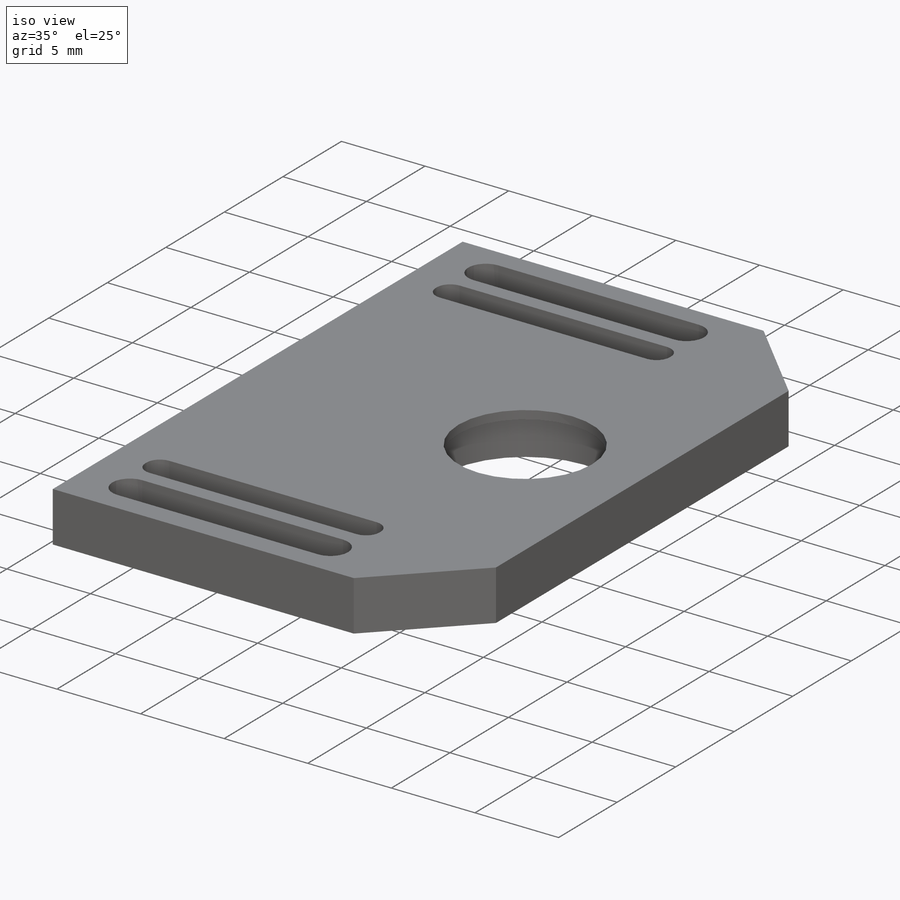
[diagram: iso view]
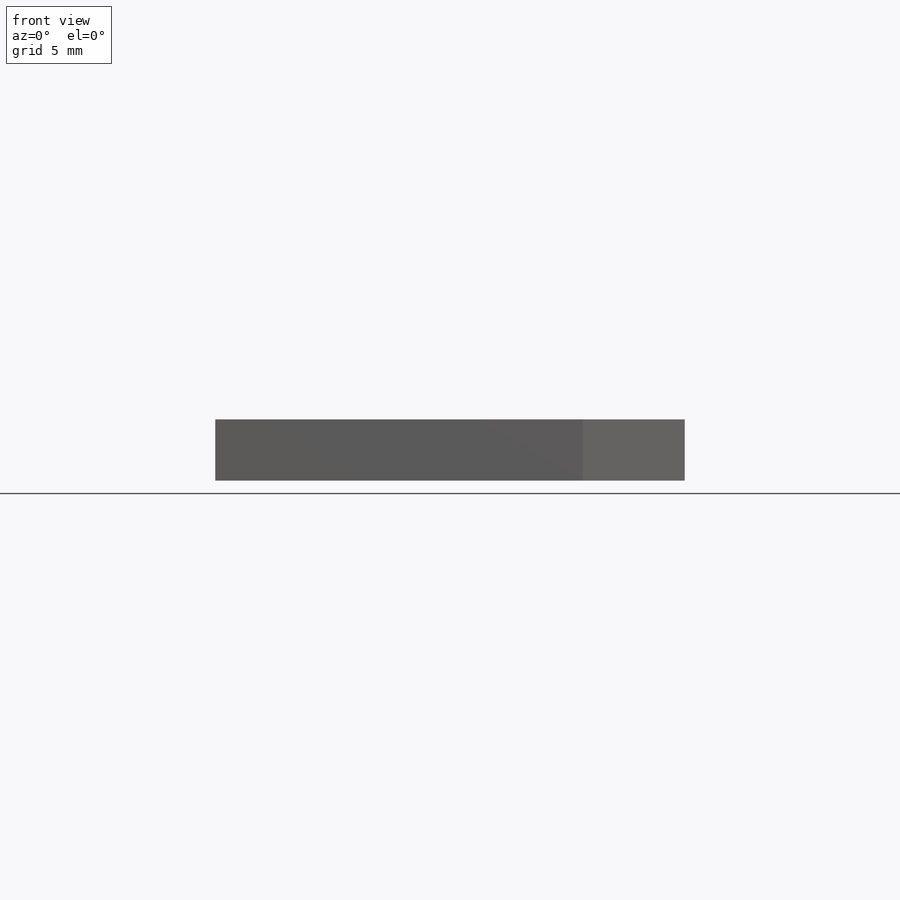
[diagram: front view]
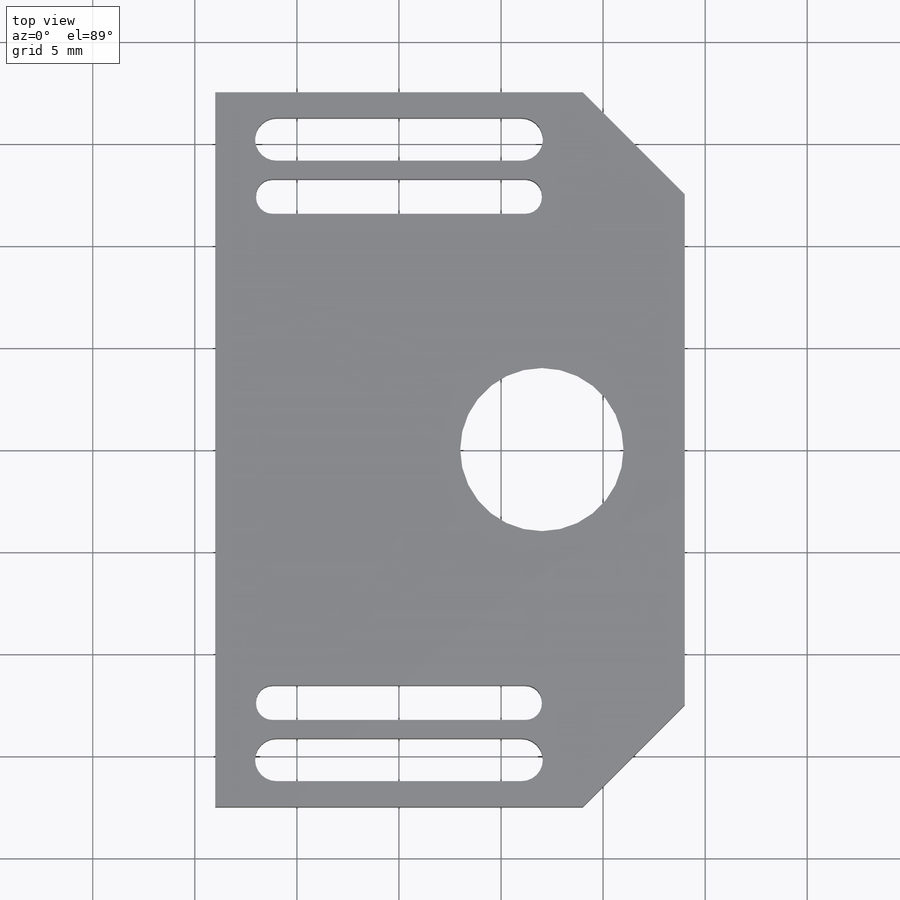
[diagram: top view]
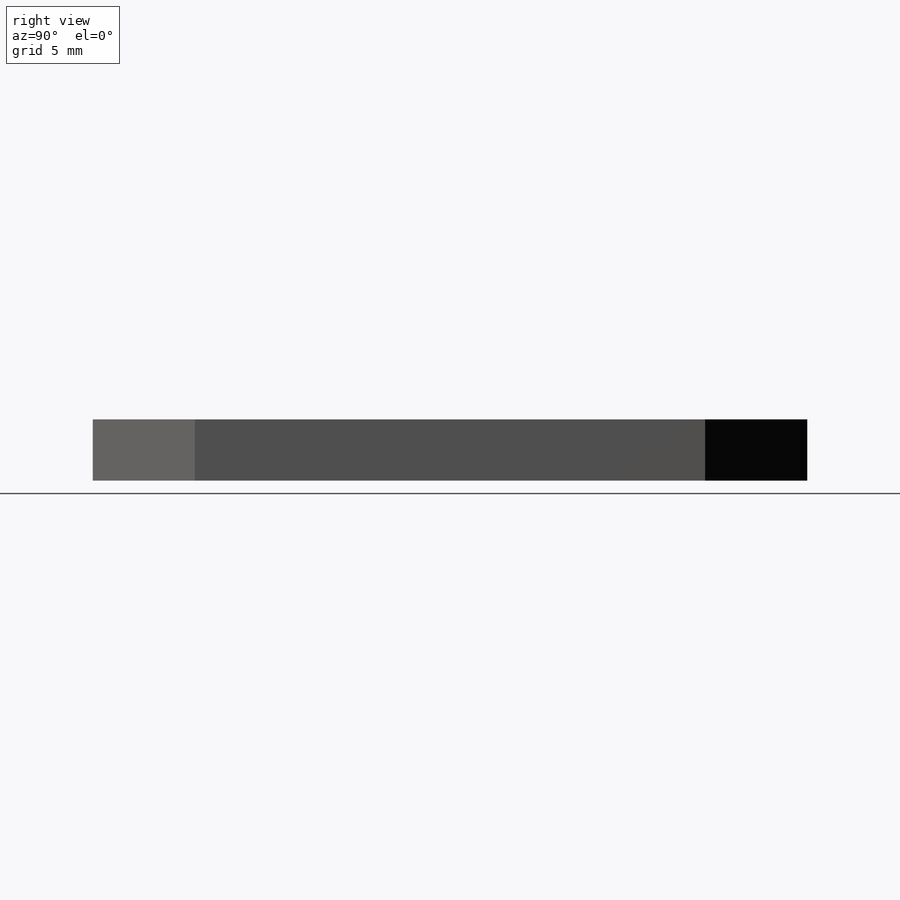
[diagram: right view]
SOLIDWORKS PART (.sldprt)
format: sldprt  version: not decoded by parser v0  size: 441,344 bytes
history: native  units: mm
features: sketch x4, plane x3, cut_extrude x2, material x1, extrude x1, fillet x1, cut_revolve x1 (+9 scaffold rows collapsed)
feature tree (22):
  scaffold x9  (default folders/planes/origin — collapsed)
  material  "Unlegierter Baustahl"
  plane  "Ebene vorne"
  plane  "Ebene oben"
  plane  "Ebene rechts"
  sketch  "Skizze1"  dims[c1.D5=10.0mm c1.D6=2.5mm c1.D7=2.5mm c1.D8=1.25mm c1.D9=16.0mm c1.D11=5.0mm c2.D7=1.05mm c2.D1=59.0mm c2.D2=41.0mm c2.D3=5.1mm c2.D4=12.0mm c2.D5=45.0mm c2.D6=3.4mm c3.D1=1.7mm c3.D2=10.0mm c3.D3=41.0mm c4.D1=1.7mm c4.D4=30.0mm c4.D6=8.0mm c4.D10=~15.394604mm c5.D10=30.0deg c5.D1=19.5mm c5.D2=17.0mm c5.D3=17.5mm c5.D4=3.4mm c5.D5=12.0mm c5.D6=4.25mm c6.D1=19.5mm c6.D2=4.25mm c6.D6=3.0mm c6.D7=17.0mm c6.D8=9.0mm c6.D9=1.7mm c6.D10=3.0mm c7.D7=17.0mm c7.D1=17.0mm c7.D2=14.0mm c7.D3=1.7mm c7.D4=1.6mm c7.D5=4.2mm c7.D6=12.0mm c7.D8=2.25mm c7.D9=~9.088009mm c8.D9=135.0deg c8.D10=20.95mm c8.D1=18.0mm c9.D10=8.5mm c9.D9=~6.211237mm c10.D9=135.0deg c10.D11=3.5mm c10.D4=26.5mm c11.D9=~12.533392mm c12.D9=45.0deg c12.D10=23.0mm c12.D8=30.4mm c12.D5=35.0mm]
  extrude  "Aufsatz-Linear austragen1"  Depth=1.65mm
  fillet  "Verrundung1"  Radius=0.8mm
  sketch  "Skizze3"  dims[c1.D1=16.0mm c1.D2=~2.788081mm c2.D2=59.0deg c2.D3=1.0mm c2.D4=10.0mm c2.D5=4.0mm]
  cut_revolve  "Schnitt-Rotation2"  Angle=360deg
  sketch  "Skizze4"  dims[D1=10.0mm D2=8.0mm D3=16.0mm]
  cut_extrude  "Schnitt-Linear austragen1"  Depth=0.5mm
  cut_extrude  "Schnitt-Linear austragen2"  [1 undecoded]
  sketch  "Skizze4<3>"
decode coverage: 7 of 9 modeling features carry decoded parameters
note: ~ marks probable driven/reference dimensions
note: 1 parameter value undecoded
note: suppression state not decoded; provenance and decode notes live in map.json
